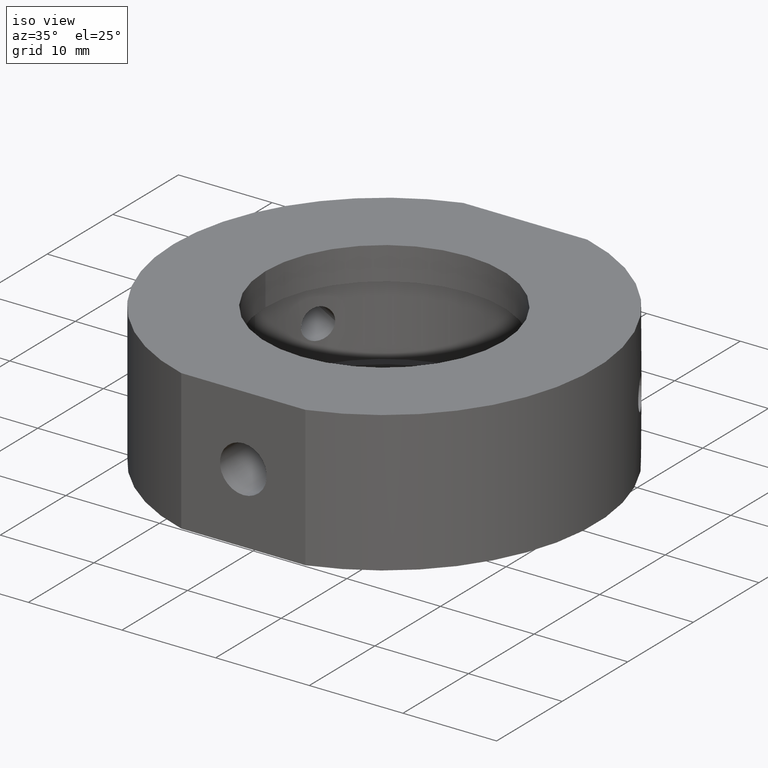
[diagram: clean part render]
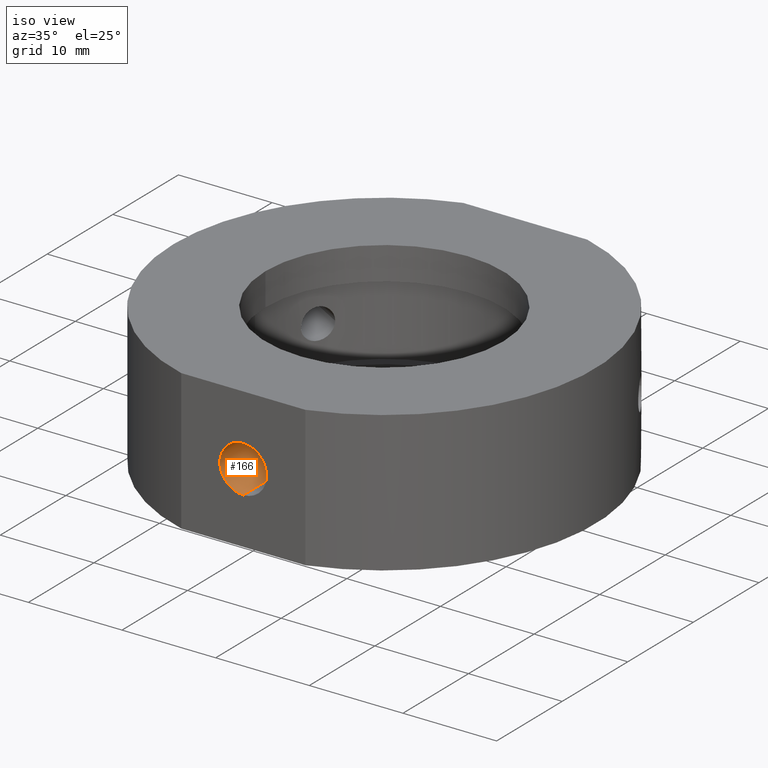
[diagram: same view with one face highlighted and labeled with its STEP entity id]
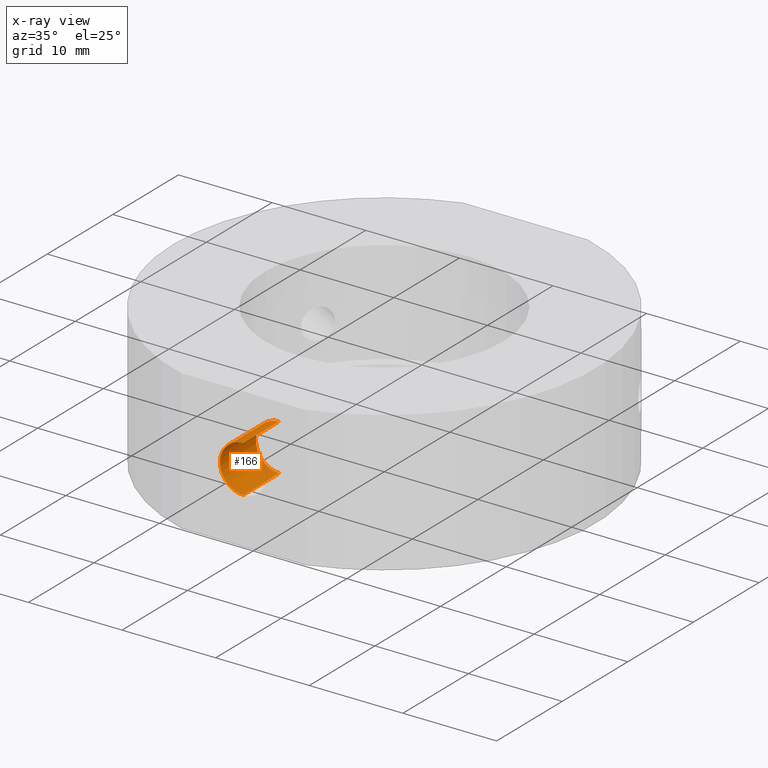
[diagram: x-ray of the same camera — body ghosted, the highlighted face saturated]
A machine part, iso view. The second image highlights one B-rep face of the part: STEP entity #166.
The next image is the same camera in x-ray: the body ghosted, the highlighted face saturated — about 0% of this face is hidden behind the body in this view.
In plain terms, the highlighted cylindrical surface (edge-blend (fillet) strip) has radius 2.5 mm, axis along (-0, -1, -0).
Its self-contained STEP definition (entity closure, byte-faithful):
#7 = CIRCLE ( 'NONE', #421, 2.499999999999999100 ) ;
#68 = AXIS2_PLACEMENT_3D ( 'NONE', #763, #144, #1030 ) ;
#76 = CARTESIAN_POINT ( 'NONE',  ( 5.510332127717259900E-015, -21.50000000000000000, 2.499999999999999100 ) ) ;
#82 = EDGE_LOOP ( 'NONE', ( #547, #427, #539, #1116 ) ) ;
#98 = CARTESIAN_POINT ( 'NONE',  ( 5.204170427930421300E-015, -16.00000000000000000, 0.0000000000000000000 ) ) ;
#111 = VERTEX_POINT ( 'NONE', #1100 ) ;
#132 = CARTESIAN_POINT ( 'NONE',  ( 5.204170427930421300E-015, -21.50000000000000000, 0.0000000000000000000 ) ) ;
#135 = VERTEX_POINT ( 'NONE', #578 ) ;
#137 = DIRECTION ( 'NONE',  ( -0.0000000000000000000, -1.000000000000000000, -0.0000000000000000000 ) ) ;
#144 = DIRECTION ( 'NONE',  ( -0.0000000000000000000, -1.000000000000000000, -0.0000000000000000000 ) ) ;
#152 = CYLINDRICAL_SURFACE ( 'NONE', #68, 2.499999999999998700 ) ;
#166 = ADVANCED_FACE ( 'NONE', ( #214 ), #152, .F. ) ;
#198 = EDGE_CURVE ( 'NONE', #691, #111, #7, .T. ) ;
#214 = FACE_OUTER_BOUND ( 'NONE', #82, .T. ) ;
#215 = DIRECTION ( 'NONE',  ( -0.0000000000000000000, -1.000000000000000000, -0.0000000000000000000 ) ) ;
#248 = CARTESIAN_POINT ( 'NONE',  ( 5.204170427930421300E-015, -21.50000000000000000, -2.499999999999998700 ) ) ;
#330 = DIRECTION ( 'NONE',  ( -0.0000000000000000000, -1.000000000000000000, -0.0000000000000000000 ) ) ;
#420 = VECTOR ( 'NONE', #215, 1000.000000000000000 ) ;
#421 = AXIS2_PLACEMENT_3D ( 'NONE', #132, #137, #479 ) ;
#427 = ORIENTED_EDGE ( 'NONE', *, *, #944, .T. ) ;
#466 = CARTESIAN_POINT ( 'NONE',  ( 5.510332127717259900E-015, -16.00000000000000000, 2.499999999999997800 ) ) ;
#479 = DIRECTION ( 'NONE',  ( 0.0000000000000000000, 0.0000000000000000000, -1.000000000000000000 ) ) ;
#537 = CIRCLE ( 'NONE', #840, 2.499999999999997800 ) ;
#539 = ORIENTED_EDGE ( 'NONE', *, *, #198, .T. ) ;
#547 = ORIENTED_EDGE ( 'NONE', *, *, #806, .F. ) ;
#550 = CARTESIAN_POINT ( 'NONE',  ( 5.510332127717259900E-015, -21.50000000000000000, 2.499999999999998700 ) ) ;
#578 = CARTESIAN_POINT ( 'NONE',  ( 5.204170427930421300E-015, -16.00000000000000000, -2.499999999999997800 ) ) ;
#632 = DIRECTION ( 'NONE',  ( -0.0000000000000000000, -1.000000000000000000, -0.0000000000000000000 ) ) ;
#687 = EDGE_CURVE ( 'NONE', #135, #111, #1128, .T. ) ;
#691 = VERTEX_POINT ( 'NONE', #76 ) ;
#763 = CARTESIAN_POINT ( 'NONE',  ( 5.204170427930421300E-015, -21.50000000000000000, 0.0000000000000000000 ) ) ;
#785 = VECTOR ( 'NONE', #330, 1000.000000000000000 ) ;
#806 = EDGE_CURVE ( 'NONE', #847, #135, #537, .T. ) ;
#840 = AXIS2_PLACEMENT_3D ( 'NONE', #98, #632, #1064 ) ;
#847 = VERTEX_POINT ( 'NONE', #466 ) ;
#911 = LINE ( 'NONE', #550, #420 ) ;
#944 = EDGE_CURVE ( 'NONE', #847, #691, #911, .T. ) ;
#1030 = DIRECTION ( 'NONE',  ( 0.0000000000000000000, 0.0000000000000000000, -1.000000000000000000 ) ) ;
#1064 = DIRECTION ( 'NONE',  ( 0.0000000000000000000, 0.0000000000000000000, -1.000000000000000000 ) ) ;
#1100 = CARTESIAN_POINT ( 'NONE',  ( 5.204170427930421300E-015, -21.50000000000000000, -2.499999999999999100 ) ) ;
#1116 = ORIENTED_EDGE ( 'NONE', *, *, #687, .F. ) ;
#1128 = LINE ( 'NONE', #248, #785 ) ;